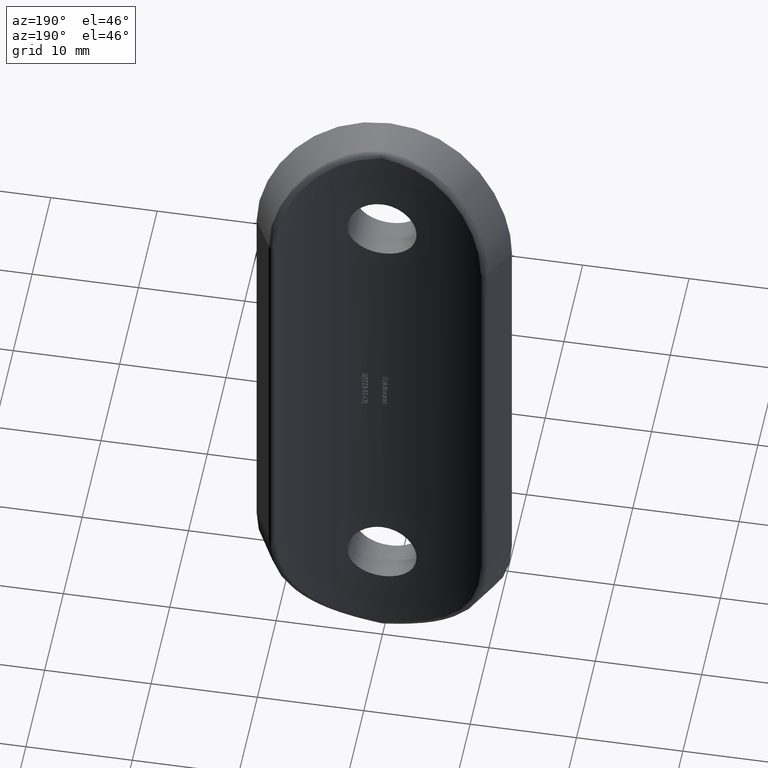
[diagram: clean part render]
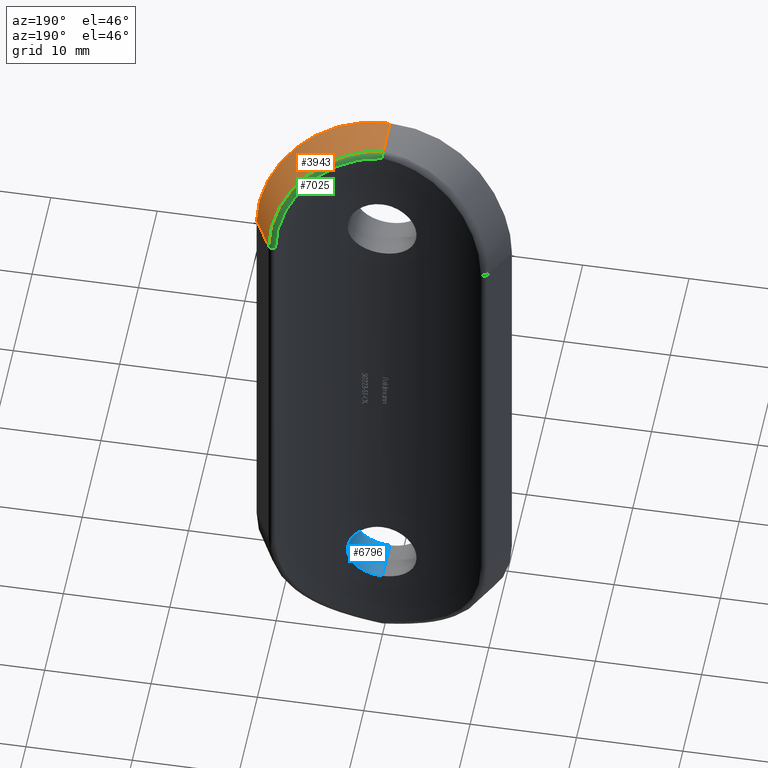
[diagram: same view with three faces highlighted in distinct colors, each labeled with its STEP entity id]
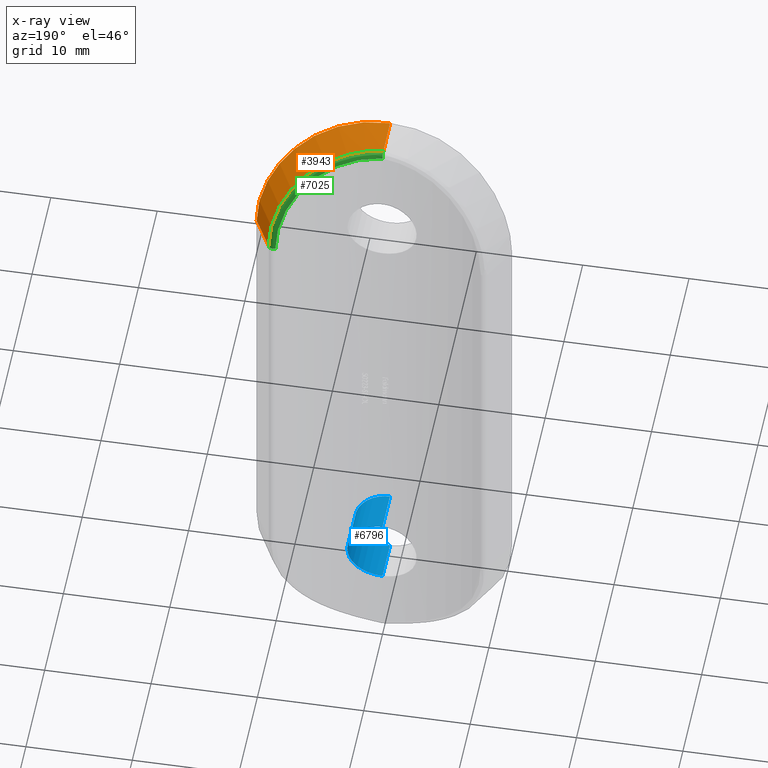
[diagram: x-ray of the same camera — body ghosted, the three highlighted faces saturated]
A machine part, auxiliary view with three faces highlighted in distinct colors.
The next image is the same camera in x-ray (body ghosted, the three faces saturated) — at least one of them is partly hidden behind the body in this view.
Their STEP definitions:

[orange] entity #3943 — the highlighted cylindrical surface (partial cylindrical patch) has radius 12 mm, axis along (0.4762, -0.8793, 0).
#316 = CARTESIAN_POINT ( 'NONE',  ( 9.380846267159300900, 1.660741133774004300, 24.47549258454393200 ) ) ;
#471 = CARTESIAN_POINT ( 'NONE',  ( -10.55210589292537900, 15.48571428571426800, 19.50000000000000000 ) ) ;
#633 = CARTESIAN_POINT ( 'NONE',  ( 11.71599125575619200, -1.111027788990791800, 22.28988272980836200 ) ) ;
#841 = CARTESIAN_POINT ( 'NONE',  ( 6.160525285184449200, -3.245138553629468300, 30.04837552026781500 ) ) ;
#896 = CARTESIAN_POINT ( 'NONE',  ( 8.909917177937140700, -2.374086248459208000, 27.86910506856552800 ) ) ;
#1056 = ORIENTED_EDGE ( 'NONE', *, *, #10342, .F. ) ;
#1113 = CARTESIAN_POINT ( 'NONE',  ( 11.99999999999999800, -0.9594223751432641200, 19.50000000000000000 ) ) ;
#1163 = ORIENTED_EDGE ( 'NONE', *, *, #6722, .F. ) ;
#1421 = CARTESIAN_POINT ( 'NONE',  ( 5.421014655413943100, 0.2527736371594110900, 29.41883732215443100 ) ) ;
#1489 = FACE_OUTER_BOUND ( 'NONE', #5179, .T. ) ;
#1938 = CARTESIAN_POINT ( 'NONE',  ( -1.430077016675846200E-015, -4.000000000000000000, 31.50000000000000000 ) ) ;
#1992 = CARTESIAN_POINT ( 'NONE',  ( -1.430077016675846200E-015, -4.000000000000000000, 31.50000000000000000 ) ) ;
#2035 = CARTESIAN_POINT ( 'NONE',  ( 10.86334236761369500, -1.540439642348692800, 24.94502513748647500 ) ) ;
#2382 = CARTESIAN_POINT ( 'NONE',  ( 0.7290367407144238100, -0.4469597635590890100, 31.27580663925250100 ) ) ;
#2423 = CARTESIAN_POINT ( 'NONE',  ( 7.742899393933323700, 0.9839081457971524700, 27.23461134556579200 ) ) ;
#2721 = VERTEX_POINT ( 'NONE', #14032 ) ;
#3093 = CARTESIAN_POINT ( 'NONE',  ( -6.648073126043469100E-016, -2.817306215491953900, 31.50000000000000000 ) ) ;
#3136 = CARTESIAN_POINT ( 'NONE',  ( 11.41391696054181700, -1.267241225314089400, 23.45119720436173300 ) ) ;
#3245 = CARTESIAN_POINT ( 'NONE',  ( 7.490020082081473500, -2.871071223889372100, 29.18960834183335600 ) ) ;
#3384 = CARTESIAN_POINT ( 'NONE',  ( -1.555207741306705000E-015, -0.4665273873807559400, 31.38144928148674100 ) ) ;
#3452 = CARTESIAN_POINT ( 'NONE',  ( 2.855490079396823900, -0.2571016089213960500, 30.72652424236561000 ) ) ;
#3536 = CARTESIAN_POINT ( 'NONE',  ( 10.01987600549707100, 1.966499582659341400, 22.39180398878291100 ) ) ;
#3580 = CARTESIAN_POINT ( 'NONE',  ( 7.963226863790067600, 1.066953135367978600, 26.94898104757637100 ) ) ;
#3628 = B_SPLINE_CURVE_WITH_KNOTS ( 'NONE', 3,
 ( #6203, #10588, #11541, #633, #9395, #3136, #4327, #2035, #8551, #7459, #11978, #14029, #896, #13931, #3245, #841, #10879, #4289, #9696, #12900, #12949, #8646, #12850, #1938 ),
 .UNSPECIFIED., .F., .F.,
 ( 4, 2, 2, 2, 2, 2, 2, 2, 2, 2, 2, 4 ),
 ( 0.0000000000000000000, 0.002403755772613356100, 0.003605633658920034400, 0.004807511545226713200, 0.007211267317840058500, 0.008413145204146725900, 0.009615023090453391600, 0.01201877886306673300, 0.01442253463568007400, 0.01562441252198674400, 0.01682629040829341700, 0.01923004618090676200 ),
 .UNSPECIFIED. ) ;
#3928 = DIRECTION ( 'NONE',  ( 0.8793421577437800000, 0.4761904761904768900, 0.0000000000000000000 ) ) ;
#3943 = ADVANCED_FACE ( 'NONE', ( #1489 ), #13139, .T. ) ;
#4289 = CARTESIAN_POINT ( 'NONE',  ( 4.349982336097550500, -3.624564216562080600, 30.81886323569778700 ) ) ;
#4327 = CARTESIAN_POINT ( 'NONE',  ( 11.28833695153357500, -1.330832197223991600, 23.83377837251705600 ) ) ;
#4471 = EDGE_CURVE ( 'NONE', #9728, #12522, #3628, .T. ) ;
#5179 = EDGE_LOOP ( 'NONE', ( #1056, #9434, #1163, #12131 ) ) ;
#5701 = CARTESIAN_POINT ( 'NONE',  ( 9.842163442257751500, 1.879487073314584100, 23.09594054719442700 ) ) ;
#5789 = CARTESIAN_POINT ( 'NONE',  ( 10.09358122146651100, 2.003259200978651000, 22.03692327181782700 ) ) ;
#6104 = LINE ( 'NONE', #11737, #11046 ) ;
#6203 = CARTESIAN_POINT ( 'NONE',  ( 11.99999999999999800, -0.9594223751432641200, 19.50000000000000000 ) ) ;
#6402 = CARTESIAN_POINT ( 'NONE',  ( -1.430077016675846200E-015, -4.000000000000000000, 31.50000000000000000 ) ) ;
#6440 = EDGE_CURVE ( 'NONE', #2721, #11138, #7939, .T. ) ;
#6722 = EDGE_CURVE ( 'NONE', #12522, #11138, #8121, .T. ) ;
#6907 = CARTESIAN_POINT ( 'NONE',  ( 0.3660390188082711700, -0.4610958318816593100, 31.33550048143713000 ) ) ;
#7459 = CARTESIAN_POINT ( 'NONE',  ( 9.884724229222927100, -1.981558221754679200, 26.63982154834023300 ) ) ;
#7861 = CARTESIAN_POINT ( 'NONE',  ( -1.555207741306705000E-015, -0.4665273873807559400, 31.38144928148674100 ) ) ;
#7939 = B_SPLINE_CURVE_WITH_KNOTS ( 'NONE', 3,
 ( #10713, #11822, #8936, #5789, #3536, #5701, #10000, #316, #12238, #8001, #13369, #3580, #2423, #12188, #13326, #1421, #13420, #10042, #3452, #10083, #9074, #2382, #6907, #7861 ),
 .UNSPECIFIED., .F., .F.,
 ( 4, 2, 2, 2, 2, 2, 2, 2, 2, 2, 2, 4 ),
 ( 0.0000000000000000000, 0.002181953622633462900, 0.003272930433950189400, 0.004363907245266916400, 0.006545860867900367600, 0.007636837679217090200, 0.008727814490533813600, 0.01090976811316725200, 0.01309172173580069200, 0.01527367535843413200, 0.01636465216975085300, 0.01745562898106757200 ),
 .UNSPECIFIED. ) ;
#8001 = CARTESIAN_POINT ( 'NONE',  ( 8.562218673332061800, 1.305111158414555200, 26.05909755608868700 ) ) ;
#8121 =( BOUNDED_CURVE ( )  B_SPLINE_CURVE ( 3, ( #1992, #3093, #8597, #12851 ),
 .UNSPECIFIED., .F., .T. ) 
 B_SPLINE_CURVE_WITH_KNOTS ( ( 4, 4 ),
 ( 4.712388980384689700, 4.853069725707897000 ),
 .UNSPECIFIED. ) 
 CURVE ( )  GEOMETRIC_REPRESENTATION_ITEM ( )  RATIONAL_B_SPLINE_CURVE ( ( 1.000000000000000000, 0.9983514238904798200, 0.9983514238904798200, 1.000000000000000000 ) ) 
 REPRESENTATION_ITEM ( '' )  );
#8551 = CARTESIAN_POINT ( 'NONE',  ( 10.51403950076352900, -1.706432111569439900, 25.64657530919565100 ) ) ;
#8597 = CARTESIAN_POINT ( 'NONE',  ( -1.111666429471938900E-015, -1.637537072060924800, 31.46041783962495600 ) ) ;
#8646 = CARTESIAN_POINT ( 'NONE',  ( 1.614628932622133000, -3.960784208731628700, 31.43669996251907900 ) ) ;
#8936 = CARTESIAN_POINT ( 'NONE',  ( 10.27070178187117300, 2.092293134099666200, 20.96398982182408900 ) ) ;
#9074 = CARTESIAN_POINT ( 'NONE',  ( 1.448652029141991800, -0.4021667335320285900, 31.12710802299232100 ) ) ;
#9395 = CARTESIAN_POINT ( 'NONE',  ( 11.62757998105686100, -1.157410682874770100, 22.67928499084951000 ) ) ;
#9434 = ORIENTED_EDGE ( 'NONE', *, *, #6440, .T. ) ;
#9696 = CARTESIAN_POINT ( 'NONE',  ( 3.971604063489190500, -3.688143116275659500, 30.94069939061651900 ) ) ;
#9728 = VERTEX_POINT ( 'NONE', #1113 ) ;
#10000 = CARTESIAN_POINT ( 'NONE',  ( 9.737482093167640700, 1.828916653511875500, 23.44699526699284000 ) ) ;
#10042 = CARTESIAN_POINT ( 'NONE',  ( 3.525587456594099200, -0.1519860559817202700, 30.46195507858156400 ) ) ;
#10083 = CARTESIAN_POINT ( 'NONE',  ( 1.806454664494644000, -0.3713428404764554900, 31.03768261639540400 ) ) ;
#10342 = EDGE_CURVE ( 'NONE', #2721, #9728, #6104, .T. ) ;
#10588 = CARTESIAN_POINT ( 'NONE',  ( 12.00000000000000000, -0.9594223751432642300, 20.31274261880712100 ) ) ;
#10713 = CARTESIAN_POINT ( 'NONE',  ( 10.33058993646413600, 2.123341184457221900, 19.50000000000000000 ) ) ;
#10818 = DIRECTION ( 'NONE',  ( 0.4761904761904769400, -0.8793421577437800000, -0.0000000000000000000 ) ) ;
#10879 = CARTESIAN_POINT ( 'NONE',  ( 5.457864477615489200, -3.413351149534354300, 30.39947326146851800 ) ) ;
#11046 = VECTOR ( 'NONE', #10818, 1000.000000000000000 ) ;
#11138 = VERTEX_POINT ( 'NONE', #3384 ) ;
#11541 = CARTESIAN_POINT ( 'NONE',  ( 11.92832106730126400, -0.9986667378848971300, 21.11159825841765400 ) ) ;
#11737 = CARTESIAN_POINT ( 'NONE',  ( 11.99999999999999800, -0.9594223751432642300, 19.50000000000000000 ) ) ;
#11822 = CARTESIAN_POINT ( 'NONE',  ( 10.33058993646413800, 2.123341184457222300, 20.23771835066772300 ) ) ;
#11978 = CARTESIAN_POINT ( 'NONE',  ( 9.655711293404406700, -2.078237200720399500, 26.96281491189224500 ) ) ;
#12119 = AXIS2_PLACEMENT_3D ( 'NONE', #471, #12589, #3928 ) ;
#12131 = ORIENTED_EDGE ( 'NONE', *, *, #4471, .F. ) ;
#12188 = CARTESIAN_POINT ( 'NONE',  ( 7.049342267791700100, 0.7354834295311231100, 28.04769904794205000 ) ) ;
#12238 = CARTESIAN_POINT ( 'NONE',  ( 9.087674179100082100, 1.527117681080104400, 25.12826339384416100 ) ) ;
#12522 = VERTEX_POINT ( 'NONE', #6402 ) ;
#12589 = DIRECTION ( 'NONE',  ( 0.4761904761904769400, -0.8793421577437800000, 0.0000000000000000000 ) ) ;
#12850 = CARTESIAN_POINT ( 'NONE',  ( 0.8123569663187905100, -3.999999999999999100, 31.50000000000000700 ) ) ;
#12851 = CARTESIAN_POINT ( 'NONE',  ( -1.555207741306705000E-015, -0.4665273873807559400, 31.38144928148674100 ) ) ;
#12900 = CARTESIAN_POINT ( 'NONE',  ( 3.196476755381116000, -3.799516854644442900, 31.14900833836188800 ) ) ;
#12949 = CARTESIAN_POINT ( 'NONE',  ( 2.801740797750721200, -3.846921380667204000, 31.23474568857012200 ) ) ;
#13139 = CYLINDRICAL_SURFACE ( 'NONE', #12119, 12.00000000000000000 ) ;
#13326 = CARTESIAN_POINT ( 'NONE',  ( 6.539470599577557100, 0.5690297762735070400, 28.53832671473507800 ) ) ;
#13369 = CARTESIAN_POINT ( 'NONE',  ( 8.372688073278615300, 1.227509043111306900, 26.36127210913013700 ) ) ;
#13420 = CARTESIAN_POINT ( 'NONE',  ( 4.806137074679146100, 0.1020900379496531700, 29.81053893712089600 ) ) ;
#13931 = CARTESIAN_POINT ( 'NONE',  ( 8.092293552249048000, -2.672399362741065600, 28.69793333266338900 ) ) ;
#14029 = CARTESIAN_POINT ( 'NONE',  ( 9.168061832152750100, -2.274576247429995300, 27.57751229447802600 ) ) ;
#14032 = CARTESIAN_POINT ( 'NONE',  ( 10.33058993646413600, 2.123341184457221900, 19.50000000000000000 ) ) ;

[blue] entity #6796 — the highlighted cylindrical surface (edge-blend (fillet) strip) has radius 3.25 mm, axis along (-0, -1, -0).
#432 = CARTESIAN_POINT ( 'NONE',  ( 3.228884920486573100, -3.792319949075413800, -21.07338228239292700 ) ) ;
#474 = CARTESIAN_POINT ( 'NONE',  ( 1.047374103152517900, -3.978995375030609100, -18.41603188571118800 ) ) ;
#497 = VERTEX_POINT ( 'NONE', #9025 ) ;
#743 = EDGE_LOOP ( 'NONE', ( #8172, #14149, #11293, #12882 ) ) ;
#948 = CARTESIAN_POINT ( 'NONE',  ( 0.4264954454845099600, 0.003269792457306753300, -24.72886130417463900 ) ) ;
#1080 = CARTESIAN_POINT ( 'NONE',  ( 1.982036205794351000, 0.09211226320555675200, -24.08439713500633100 ) ) ;
#1168 = CARTESIAN_POINT ( 'NONE',  ( 0.2122731573180394200, -3.192043661727830800E-015, -18.25000000000000000 ) ) ;
#1171 = B_SPLINE_CURVE_WITH_KNOTS ( 'NONE', 3,
 ( #9701, #8777, #948, #2089, #6553, #3293, #14084, #1080, #9797, #8650, #5319, #10932, #7560, #14036, #3252, #14181, #4333, #3144, #9749, #5469, #4296, #7653, #6732, #12075, #5717, #4464, #1296, #9927, #7746, #13261, #10099, #10013, #1168, #4509 ),
 .UNSPECIFIED., .F., .F.,
 ( 4, 2, 2, 2, 2, 2, 2, 2, 2, 2, 2, 2, 2, 2, 2, 2, 4 ),
 ( 1.784740012838086800E-019, 0.0006359992705123447800, 0.001271998541024689100, 0.001907997811537033400, 0.002543997082049377800, 0.003179996352561722900, 0.003815995623074067100, 0.004451994893586412200, 0.005087994164098756500, 0.005723993434611100700, 0.006359992705123445800, 0.006995991975635790100, 0.007631991246148134300, 0.008267990516660479400, 0.008903989787172824500, 0.009539989057685167900, 0.01017598832819751300 ),
 .UNSPECIFIED. ) ;
#1296 = CARTESIAN_POINT ( 'NONE',  ( 1.982938509338523700, 0.09220263752442738000, -18.91635450782076000 ) ) ;
#1696 = CARTESIAN_POINT ( 'NONE',  ( 3.980102097228897200E-016, -6.249999999999974200, -18.25000000000000000 ) ) ;
#1727 = CARTESIAN_POINT ( 'NONE',  ( 3.145789730916917400, -3.802915054760238600, -20.65637243076135100 ) ) ;
#1802 = CYLINDRICAL_SURFACE ( 'NONE', #10283, 3.249999999999999600 ) ;
#2089 = CARTESIAN_POINT ( 'NONE',  ( 0.8423372769297834400, 0.01571955981826477600, -24.64609465822467600 ) ) ;
#2447 = CARTESIAN_POINT ( 'NONE',  ( -3.237414360353812700E-016, -3.999999999999998200, -24.74999999999999600 ) ) ;
#2674 = CARTESIAN_POINT ( 'NONE',  ( 0.4278075634889013100, -3.997231405282156500, -18.27127346366641800 ) ) ;
#2724 = CARTESIAN_POINT ( 'NONE',  ( 2.448293202745678100, -3.881237321424443100, -23.64783916201492900 ) ) ;
#2775 = CARTESIAN_POINT ( 'NONE',  ( 2.148846319067987800, -3.908665131329721800, -23.94740927707720600 ) ) ;
#2820 = CARTESIAN_POINT ( 'NONE',  ( 1.630984209508580700, -3.947783067614378400, -18.68092628248565700 ) ) ;
#3144 = CARTESIAN_POINT ( 'NONE',  ( 3.250079504832142300, 0.2506090012434782900, -21.28889479561993900 ) ) ;
#3252 = CARTESIAN_POINT ( 'NONE',  ( 3.145685426611446000, 0.2346369294840653900, -22.34436239147623800 ) ) ;
#3293 = CARTESIAN_POINT ( 'NONE',  ( 1.442403631853392800, 0.04820789140670848200, -24.42016099372725400 ) ) ;
#3392 = VECTOR ( 'NONE', #5958, 1000.000000000000000 ) ;
#3745 = CARTESIAN_POINT ( 'NONE',  ( 0.8420286645357342200, -3.986786607900433000, -24.64617266009791800 ) ) ;
#3791 = CARTESIAN_POINT ( 'NONE',  ( 1.048575703819336000, -3.978945489830352700, -24.58356341383954200 ) ) ;
#3840 = CARTESIAN_POINT ( 'NONE',  ( 3.980101605057122000E-016, -4.000000000000001800, -18.25000000000000000 ) ) ;
#4296 = CARTESIAN_POINT ( 'NONE',  ( 3.084227820100316400, 0.2253884919581221100, -20.45334938705387300 ) ) ;
#4333 = CARTESIAN_POINT ( 'NONE',  ( 3.249920036851538600, 0.2505842620711348200, -21.71354612878063500 ) ) ;
#4443 = VERTEX_POINT ( 'NONE', #5335 ) ;
#4464 = CARTESIAN_POINT ( 'NONE',  ( 2.146772466492739900, 0.1084242658261596200, -19.05056654316342700 ) ) ;
#4509 = CARTESIAN_POINT ( 'NONE',  ( 3.980101132474219600E-016, -3.578424432187622000E-015, -18.25000000000000000 ) ) ;
#4881 = CARTESIAN_POINT ( 'NONE',  ( 0.2122230471317226300, -4.000000000000000900, -18.25000000000000400 ) ) ;
#5038 = CARTESIAN_POINT ( 'NONE',  ( 3.084330026343578400, -3.810670690545057100, -20.45366553155928100 ) ) ;
#5319 = CARTESIAN_POINT ( 'NONE',  ( 2.582659189079638700, 0.1575615568940026700, -23.48444623506342000 ) ) ;
#5335 = CARTESIAN_POINT ( 'NONE',  ( 3.980101132474219600E-016, -3.578424432187622000E-015, -18.25000000000000000 ) ) ;
#5437 = LINE ( 'NONE', #13505, #9857 ) ;
#5469 = CARTESIAN_POINT ( 'NONE',  ( 3.145719621873083800, 0.2346424750288583800, -20.65610111859616500 ) ) ;
#5526 = VERTEX_POINT ( 'NONE', #11928 ) ;
#5717 = CARTESIAN_POINT ( 'NONE',  ( 2.449601441195985400, 0.1414470641363241300, -19.35341921613645200 ) ) ;
#5923 = CARTESIAN_POINT ( 'NONE',  ( -1.546228035191325800E-016, -4.619721007958063400E-015, -24.74999999999999600 ) ) ;
#5947 = CARTESIAN_POINT ( 'NONE',  ( 2.146749842079460600, -3.908855626522028900, -19.05052656596651100 ) ) ;
#5958 = DIRECTION ( 'NONE',  ( -0.0000000000000000000, -1.000000000000000000, -0.0000000000000000000 ) ) ;
#5999 = CARTESIAN_POINT ( 'NONE',  ( 3.229257522345796400, -3.792272161209743000, -21.92446431460341200 ) ) ;
#6093 = CARTESIAN_POINT ( 'NONE',  ( 3.249921466792945200, -3.789558028622972000, -21.71342183589956300 ) ) ;
#6143 = CARTESIAN_POINT ( 'NONE',  ( 2.449887203856966300, -3.881092847927759800, -19.35372236724093800 ) ) ;
#6485 = LINE ( 'NONE', #1696, #3392 ) ;
#6510 = VERTEX_POINT ( 'NONE', #5923 ) ;
#6553 = CARTESIAN_POINT ( 'NONE',  ( 1.048939250356790000, 0.02504866377742445700, -24.58343881332692900 ) ) ;
#6640 = DIRECTION ( 'NONE',  ( -0.0000000000000000000, -1.000000000000000000, -0.0000000000000000000 ) ) ;
#6732 = CARTESIAN_POINT ( 'NONE',  ( 2.819422580313719600, 0.1879817580463362100, -19.86962649965411400 ) ) ;
#6796 = ADVANCED_FACE ( 'NONE', ( #8136 ), #1802, .F. ) ;
#7018 = CARTESIAN_POINT ( 'NONE',  ( 2.921303650117720100, -3.830236217145515500, -20.05989843585232200 ) ) ;
#7065 = CARTESIAN_POINT ( 'NONE',  ( 1.982795539817884300, -3.922492403317331600, -18.91624150437298700 ) ) ;
#7157 = CARTESIAN_POINT ( 'NONE',  ( 1.442084102744212800, -3.959475360728428300, -24.42031980687431100 ) ) ;
#7560 = CARTESIAN_POINT ( 'NONE',  ( 2.920988639077606300, 0.2020350234704950100, -22.94052626282839600 ) ) ;
#7653 = CARTESIAN_POINT ( 'NONE',  ( 2.921096390877595500, 0.2020480752344466200, -20.05946724193334100 ) ) ;
#7746 = CARTESIAN_POINT ( 'NONE',  ( 1.441005896736211600, 0.04811340504722574200, -18.57915840024821500 ) ) ;
#7757 = B_SPLINE_CURVE_WITH_KNOTS ( 'NONE', 3,
 ( #2447, #9334, #9289, #3745, #3791, #7157, #9196, #11432, #2775, #2724, #8302, #11585, #11386, #8249, #10376, #5999, #6093, #12494, #432, #1727, #5038, #7018, #9383, #12688, #6143, #5947, #7065, #2820, #10423, #474, #8158, #2674, #4881, #3840 ),
 .UNSPECIFIED., .F., .F.,
 ( 4, 2, 2, 2, 2, 2, 2, 2, 2, 2, 2, 2, 2, 2, 2, 2, 4 ),
 ( 2.787408239283590600E-019, 0.0006357232227818316500, 0.001271446445563662600, 0.001907169668345494000, 0.002542892891127325300, 0.003178616113909156400, 0.003814339336690987900, 0.004450062559472819100, 0.005085785782254649700, 0.005721509005036482100, 0.006357232227818313700, 0.006992955450600144400, 0.007628678673381975900, 0.008264401896163807400, 0.008900125118945638100, 0.009535848341727470500, 0.01017157156450930100 ),
 .UNSPECIFIED. ) ;
#7994 = EDGE_CURVE ( 'NONE', #6510, #4443, #1171, .T. ) ;
#8136 = FACE_OUTER_BOUND ( 'NONE', #743, .T. ) ;
#8158 = CARTESIAN_POINT ( 'NONE',  ( 0.8447587679019649100, -3.986700308431997200, -18.35451482568178200 ) ) ;
#8172 = ORIENTED_EDGE ( 'NONE', *, *, #9101, .F. ) ;
#8249 = CARTESIAN_POINT ( 'NONE',  ( 3.083254818959087400, -3.810801770974805900, -22.54920756651177900 ) ) ;
#8302 = CARTESIAN_POINT ( 'NONE',  ( 2.582741924261363000, -3.867583038801238900, -23.48434012082718800 ) ) ;
#8650 = CARTESIAN_POINT ( 'NONE',  ( 2.448245710141897700, 0.1413021867625217600, -23.64788291266884800 ) ) ;
#8694 = CARTESIAN_POINT ( 'NONE',  ( 0.0000000000000000000, -6.249999999999974200, -21.50000000000000000 ) ) ;
#8777 = CARTESIAN_POINT ( 'NONE',  ( 0.2150763702856124400, -3.442871293233509300E-015, -24.74999999999999600 ) ) ;
#9025 = CARTESIAN_POINT ( 'NONE',  ( -3.237414360353812700E-016, -3.999999999999998200, -24.74999999999999600 ) ) ;
#9101 = EDGE_CURVE ( 'NONE', #4443, #5526, #6485, .T. ) ;
#9166 = DIRECTION ( 'NONE',  ( -0.0000000000000000000, -1.000000000000000000, -0.0000000000000000000 ) ) ;
#9196 = CARTESIAN_POINT ( 'NONE',  ( 1.628683084157501300, -3.947936878248986800, -24.32045740492953100 ) ) ;
#9289 = CARTESIAN_POINT ( 'NONE',  ( 0.4263147010909994500, -3.997251589795385800, -24.72888068139426600 ) ) ;
#9334 = CARTESIAN_POINT ( 'NONE',  ( 0.2149759820200501900, -4.000000000000000000, -24.74999999999999600 ) ) ;
#9383 = CARTESIAN_POINT ( 'NONE',  ( 2.819586614385453300, -3.842043119532631200, -19.86990162381511700 ) ) ;
#9701 = CARTESIAN_POINT ( 'NONE',  ( -1.546228035191325800E-016, -4.619721007958063400E-015, -24.74999999999999600 ) ) ;
#9749 = CARTESIAN_POINT ( 'NONE',  ( 3.228861059861452400, 0.2472859909411308200, -21.07318210255150200 ) ) ;
#9797 = CARTESIAN_POINT ( 'NONE',  ( 2.148951533804948500, 0.1086589342489055300, -23.94730777981037300 ) ) ;
#9857 = VECTOR ( 'NONE', #9166, 1000.000000000000000 ) ;
#9927 = CARTESIAN_POINT ( 'NONE',  ( 1.631209832495484900, 0.06211199978771579600, -18.68105983684544200 ) ) ;
#10013 = CARTESIAN_POINT ( 'NONE',  ( 0.4279129834556345000, 0.003291781754002020200, -18.27127959555558000 ) ) ;
#10099 = CARTESIAN_POINT ( 'NONE',  ( 0.8450918658946555700, 0.01582268415726228300, -18.35459625649037800 ) ) ;
#10283 = AXIS2_PLACEMENT_3D ( 'NONE', #8694, #6640, #14132 ) ;
#10376 = CARTESIAN_POINT ( 'NONE',  ( 3.145745220927481400, -3.802921007966614500, -22.34413334551512900 ) ) ;
#10423 = CARTESIAN_POINT ( 'NONE',  ( 1.440851101306092700, -3.959545876498494500, -18.57907549810515500 ) ) ;
#10932 = CARTESIAN_POINT ( 'NONE',  ( 2.820240372269857700, 0.1880846098823771300, -23.12923282234738300 ) ) ;
#10973 = EDGE_CURVE ( 'NONE', #6510, #497, #5437, .T. ) ;
#11293 = ORIENTED_EDGE ( 'NONE', *, *, #10973, .T. ) ;
#11386 = CARTESIAN_POINT ( 'NONE',  ( 2.921132622535348700, -3.830254687221836400, -22.94023643816553800 ) ) ;
#11432 = CARTESIAN_POINT ( 'NONE',  ( 1.981823280531521900, -3.922573799389253800, -24.08456283467550600 ) ) ;
#11585 = CARTESIAN_POINT ( 'NONE',  ( 2.820323020819258900, -3.841965843614787900, -23.12909165509454800 ) ) ;
#11928 = CARTESIAN_POINT ( 'NONE',  ( 3.980101605057122000E-016, -4.000000000000001800, -18.25000000000000000 ) ) ;
#12075 = CARTESIAN_POINT ( 'NONE',  ( 2.584254445682808900, 0.1577643001855658900, -19.51785711993771600 ) ) ;
#12494 = CARTESIAN_POINT ( 'NONE',  ( 3.250078090663377900, -3.789537659004944100, -21.28897671941173200 ) ) ;
#12688 = CARTESIAN_POINT ( 'NONE',  ( 2.584372539048636500, -3.867409336745681000, -19.51800404352745500 ) ) ;
#12882 = ORIENTED_EDGE ( 'NONE', *, *, #13598, .T. ) ;
#13261 = CARTESIAN_POINT ( 'NONE',  ( 1.047707894291750600, 0.02498848433819274600, -18.41615146067322700 ) ) ;
#13505 = CARTESIAN_POINT ( 'NONE',  ( 0.0000000000000000000, -6.249999999999974200, -24.74999999999999600 ) ) ;
#13598 = EDGE_CURVE ( 'NONE', #497, #5526, #7757, .T. ) ;
#14036 = CARTESIAN_POINT ( 'NONE',  ( 3.083140140979245800, 0.2252305219756310100, -22.54954152590607600 ) ) ;
#14084 = CARTESIAN_POINT ( 'NONE',  ( 1.628966586198433000, 0.06193338804974971700, -24.32029146251899500 ) ) ;
#14132 = DIRECTION ( 'NONE',  ( 0.0000000000000000000, 0.0000000000000000000, -1.000000000000000000 ) ) ;
#14149 = ORIENTED_EDGE ( 'NONE', *, *, #7994, .F. ) ;
#14181 = CARTESIAN_POINT ( 'NONE',  ( 3.229234686348998900, 0.2473431560045480600, -21.92465043484681800 ) ) ;

[green] entity #7025 — the highlighted face is a freeform B-spline surface patch.
#316 = CARTESIAN_POINT ( 'NONE',  ( 9.380846267159300900, 1.660741133774004300, 24.47549258454393200 ) ) ;
#454 = EDGE_CURVE ( 'NONE', #11138, #10729, #4853, .T. ) ;
#487 = CARTESIAN_POINT ( 'NONE',  ( 6.533477080495391200, 1.026461153271245500, 27.74491136130227500 ) ) ;
#535 = CARTESIAN_POINT ( 'NONE',  ( 6.995248304402477600, 0.7172880876236088500, 28.10338576803350800 ) ) ;
#586 = CARTESIAN_POINT ( 'NONE',  ( 8.757743212834732600, 1.891853518453189900, 24.30637283226694500 ) ) ;
#637 = CARTESIAN_POINT ( 'NONE',  ( 9.605969955432190200, 2.300762448865997900, 20.91489877139577700 ) ) ;
#688 = CARTESIAN_POINT ( 'NONE',  ( 6.477832343604291100, 0.5498281777571896200, 28.59389063956088600 ) ) ;
#695 = CARTESIAN_POINT ( 'NONE',  ( 8.258174201492155500E-015, -0.2194944559927970700, 31.31449719995204400 ) ) ;
#774 = CARTESIAN_POINT ( 'NONE',  ( 5.113609657060173700, 0.6188133145618903700, 28.96289865701957200 ) ) ;
#879 = CARTESIAN_POINT ( 'NONE',  ( 0.6896497510945458500, 0.008480767863660776700, 30.77399828199671500 ) ) ;
#898 = CARTESIAN_POINT ( 'NONE',  ( 1.202358941728816300, 0.03140433067582475800, 30.66741318706098000 ) ) ;
#1233 = ORIENTED_EDGE ( 'NONE', *, *, #454, .F. ) ;
#1308 = CIRCLE ( 'NONE', #6248, 0.5000000000000004400 ) ;
#1421 = CARTESIAN_POINT ( 'NONE',  ( 5.421014655413943100, 0.2527736371594110900, 29.41883732215443100 ) ) ;
#1594 = CARTESIAN_POINT ( 'NONE',  ( 5.196446019220325700, 0.6430515654991423300, 29.40758670405110200 ) ) ;
#1642 = CARTESIAN_POINT ( 'NONE',  ( 10.26968361599156200, 2.091759916416298500, 20.97641610927502500 ) ) ;
#1740 = CARTESIAN_POINT ( 'NONE',  ( 9.437177149033294300, 2.216226740779936300, 21.95164495668590700 ) ) ;
#1797 = CARTESIAN_POINT ( 'NONE',  ( 9.197488118853034000, 2.098819615003829400, 22.97481880383837800 ) ) ;
#1921 = CARTESIAN_POINT ( 'NONE',  ( 9.378791250828021100, 2.187202348987393700, 22.23901331811555300 ) ) ;
#1977 = CARTESIAN_POINT ( 'NONE',  ( 6.159456498197347900, 0.9072588162060164500, 28.11145014195096100 ) ) ;
#2288 = CARTESIAN_POINT ( 'NONE',  ( 9.890918857592245300, 1.885245946361983500, 19.50000000000000000 ) ) ;
#2382 = CARTESIAN_POINT ( 'NONE',  ( 0.7290367407144238100, -0.4469597635590890100, 31.27580663925250100 ) ) ;
#2423 = CARTESIAN_POINT ( 'NONE',  ( 7.742899393933323700, 0.9839081457971524700, 27.23461134556579200 ) ) ;
#2635 = CARTESIAN_POINT ( 'NONE',  ( 9.364642108057932300, 1.653273491039128200, 24.51534556396173100 ) ) ;
#2685 = CARTESIAN_POINT ( 'NONE',  ( 9.786342818186245300, 2.387878524322688100, 22.41102076221211400 ) ) ;
#2721 = VERTEX_POINT ( 'NONE', #14032 ) ;
#2735 = CARTESIAN_POINT ( 'NONE',  ( 4.386553868771559700, 0.4566475144797662600, 29.41431650444744900 ) ) ;
#2747 = CARTESIAN_POINT ( 'NONE',  ( -4.618694692894546100E-015, -5.064187066458384200E-015, 30.87858612579885800 ) ) ;
#2951 = EDGE_CURVE ( 'NONE', #10729, #3052, #5915, .T. ) ;
#2975 = CARTESIAN_POINT ( 'NONE',  ( 8.037999328782264600, 1.582118121373202100, 25.72968974590904200 ) ) ;
#2995 = CARTESIAN_POINT ( 'NONE',  ( 0.5993615212584417800, 0.005419335145114260000, 31.25677621415526600 ) ) ;
#3027 = CARTESIAN_POINT ( 'NONE',  ( 9.608332408218966900, 2.301995974115456100, 20.88568067004391400 ) ) ;
#3052 = VERTEX_POINT ( 'NONE', #5010 ) ;
#3179 = CARTESIAN_POINT ( 'NONE',  ( 3.330643053977195000, 0.2542796804946514900, 29.97754406847160900 ) ) ;
#3384 = CARTESIAN_POINT ( 'NONE',  ( -1.555207741306705000E-015, -0.4665273873807559400, 31.38144928148674100 ) ) ;
#3452 = CARTESIAN_POINT ( 'NONE',  ( 2.855490079396823900, -0.2571016089213960500, 30.72652424236561000 ) ) ;
#3457 =( BOUNDED_SURFACE ( )  B_SPLINE_SURFACE ( 3, 2, ( 
 ( #11168, #3898, #4848 ),
 ( #3803, #3753, #3849 ),
 ( #637, #13685, #1642 ),
 ( #1740, #10434, #4947 ),
 ( #13640, #2685, #13596 ),
 ( #1797, #12503, #7170 ),
 ( #10336, #11394, #11546 ),
 ( #586, #10386, #2635 ),
 ( #8262, #7271, #6009 ),
 ( #12550, #11445, #10294 ),
 ( #4894, #5955, #3948 ),
 ( #4997, #7120, #6108 ),
 ( #12702, #12652, #7077 ),
 ( #487, #11490, #535 ),
 ( #11599, #8167, #688 ),
 ( #12603, #8217, #9297 ),
 ( #6058, #1594, #13787 ),
 ( #2735, #13735, #7222 ),
 ( #9251, #9400, #10484 ),
 ( #6155, #5055, #8367 ),
 ( #6267, #9554, #8414 ),
 ( #6366, #4110, #13886 ),
 ( #898, #12804, #8555 ),
 ( #4154, #2995, #12752 ),
 ( #8509, #4001, #7362 ),
 ( #10637, #9647, #14033 ) ),
 .UNSPECIFIED., .F., .F., .F. ) 
 B_SPLINE_SURFACE_WITH_KNOTS ( ( 4, 2, 2, 2, 2, 2, 2, 2, 2, 2, 2, 2, 4 ),
 ( 3, 3 ),
 ( 0.0000000000000000000, 0.002108923726170382000, 0.003163385589255573100, 0.004217847452340764100, 0.006326771178511146100, 0.007381233041596336700, 0.008435694904681528100, 0.01054461863085191100, 0.01159908049393710100, 0.01265354235702229200, 0.01476246608319267300, 0.01581692794627786300, 0.01687138980936305600 ),
 ( 0.0000000000000000000, 1.000000000000000000 ),
 .UNSPECIFIED. ) 
 GEOMETRIC_REPRESENTATION_ITEM ( )  RATIONAL_B_SPLINE_SURFACE ( (
 ( 1.000000000000000000, 0.7152067794192037400, 1.000000000000000000),
 ( 1.000000000000000000, 0.7152030138075474700, 1.000000000000000000),
 ( 1.000000000000000000, 0.7162386269001991300, 1.000000000000000000),
 ( 1.000000000000000000, 0.7190974102889098300, 1.000000000000000000),
 ( 1.000000000000000000, 0.7202669975625837200, 1.000000000000000000),
 ( 1.000000000000000000, 0.7229771465164223100, 1.000000000000000000),
 ( 1.000000000000000000, 0.7245272282875912000, 1.000000000000000000),
 ( 1.000000000000000000, 0.7295283016102588300, 1.000000000000000000),
 ( 1.000000000000000000, 0.7333270819599722000, 1.000000000000000000),
 ( 1.000000000000000000, 0.7390232495485793400, 1.000000000000000000),
 ( 1.000000000000000000, 0.7409210345986859700, 1.000000000000000000),
 ( 1.000000000000000000, 0.7445850415033826700, 1.000000000000000000),
 ( 1.000000000000000000, 0.7463470331104891100, 1.000000000000000000),
 ( 1.000000000000000000, 0.7511224776702678500, 1.000000000000000000),
 ( 1.000000000000000000, 0.7536688717658081000, 1.000000000000000000),
 ( 1.000000000000000000, 0.7558262722949770100, 1.000000000000000000),
 ( 1.000000000000000000, 0.7562685044639152500, 1.000000000000000000),
 ( 1.000000000000000000, 0.7564715335614993200, 1.000000000000000000),
 ( 1.000000000000000000, 0.7562327208749114500, 1.000000000000000000),
 ( 1.000000000000000000, 0.7544103873443004400, 1.000000000000000000),
 ( 1.000000000000000000, 0.7517216988928300300, 1.000000000000000000),
 ( 1.000000000000000000, 0.7451516596828003900, 1.000000000000000000),
 ( 1.000000000000000000, 0.7425328598652234400, 1.000000000000000000),
 ( 1.000000000000000000, 0.7365379224981940500, 1.000000000000000000),
 ( 1.000000000000000000, 0.7331517136095948600, 1.000000000000000000),
 ( 1.000000000000000000, 0.7293836484547999700, 1.000000000000000000) ) ) 
 REPRESENTATION_ITEM ( '' )  SURFACE ( )  );
#3536 = CARTESIAN_POINT ( 'NONE',  ( 10.01987600549707100, 1.966499582659341400, 22.39180398878291100 ) ) ;
#3580 = CARTESIAN_POINT ( 'NONE',  ( 7.963226863790067600, 1.066953135367978600, 26.94898104757637100 ) ) ;
#3753 = CARTESIAN_POINT ( 'NONE',  ( 10.09791899111120400, 2.552995661837016400, 20.24330488264090600 ) ) ;
#3803 = CARTESIAN_POINT ( 'NONE',  ( 9.663017500632980400, 2.330286361938058700, 20.21299152555879900 ) ) ;
#3849 = CARTESIAN_POINT ( 'NONE',  ( 10.33058993645402200, 2.123341184475901600, 20.24399115711022300 ) ) ;
#3857 = CARTESIAN_POINT ( 'NONE',  ( -2.563273398535507500E-015, -0.3398445469029665600, 31.37290625969599800 ) ) ;
#3898 = CARTESIAN_POINT ( 'NONE',  ( 10.09791899194918100, 2.552995662284760500, 19.50000000000000000 ) ) ;
#3948 = CARTESIAN_POINT ( 'NONE',  ( 8.339505727220965200, 1.214131658364097300, 26.41221021444473700 ) ) ;
#4001 = CARTESIAN_POINT ( 'NONE',  ( 0.2474847149378889000, -0.001559229136010627800, 31.31701424292835200 ) ) ;
#4088 = CARTESIAN_POINT ( 'NONE',  ( 8.522911624579375500, 1.785498515474549500, 24.84042727051943800 ) ) ;
#4110 = CARTESIAN_POINT ( 'NONE',  ( 1.650231524935692500, 0.06121280808593716800, 31.01890975334584200 ) ) ;
#4136 = CARTESIAN_POINT ( 'NONE',  ( 9.663017501426530500, 2.330286362344426100, 20.19794404104408500 ) ) ;
#4154 = CARTESIAN_POINT ( 'NONE',  ( 0.5243656461507986100, 0.003770375247810940900, 30.80355038451571300 ) ) ;
#4680 = ORIENTED_EDGE ( 'NONE', *, *, #6440, .F. ) ;
#4848 = CARTESIAN_POINT ( 'NONE',  ( 10.33058993646413600, 2.123341184457221400, 19.50000000000000000 ) ) ;
#4853 = B_SPLINE_CURVE_WITH_KNOTS ( 'NONE', 3,
 ( #8324, #3857, #695, #8177, #13749, #2747 ),
 .UNSPECIFIED., .F., .F.,
 ( 4, 2, 4 ),
 ( 2.927345865710862000E-018, 0.0003754857564058667600, 0.0007509715128117306000 ),
 .UNSPECIFIED. ) ;
#4894 = CARTESIAN_POINT ( 'NONE',  ( 7.795980046934873900, 1.484357380830180900, 26.12420145561111800 ) ) ;
#4947 = CARTESIAN_POINT ( 'NONE',  ( 10.08952598151063600, 2.001231854621101200, 22.05823821567601300 ) ) ;
#4997 = CARTESIAN_POINT ( 'NONE',  ( 7.404928707972119100, 1.334177600489769600, 26.69018392525085300 ) ) ;
#5010 = CARTESIAN_POINT ( 'NONE',  ( 9.663017501426526900, 2.330286362344427000, 19.50000000000000000 ) ) ;
#5055 = CARTESIAN_POINT ( 'NONE',  ( 3.339284962142063100, 0.2541194991178110700, 30.44871669159592300 ) ) ;
#5137 = CARTESIAN_POINT ( 'NONE',  ( 4.536338801400726900, 0.4819399282931899900, 29.34338558514981100 ) ) ;
#5192 = CARTESIAN_POINT ( 'NONE',  ( 9.120173968685220300, 2.061636133241121700, 23.23995891737122600 ) ) ;
#5701 = CARTESIAN_POINT ( 'NONE',  ( 9.842163442257751500, 1.879487073314584100, 23.09594054719442700 ) ) ;
#5789 = CARTESIAN_POINT ( 'NONE',  ( 10.09358122146651100, 2.003259200978651000, 22.03692327181782700 ) ) ;
#5915 = B_SPLINE_CURVE_WITH_KNOTS ( 'NONE', 3,
 ( #6344, #6444, #879, #14065, #9727, #13913, #3179, #5137, #774, #1977, #9533, #10715, #12881, #7392, #2975, #4088, #10670, #5192, #8493, #1921, #9578, #3027, #4136, #7774 ),
 .UNSPECIFIED., .F., .F.,
 ( 4, 2, 2, 2, 2, 2, 2, 2, 2, 2, 2, 4 ),
 ( 0.0000000000000000000, 0.001045220149918886500, 0.002090440299837772900, 0.004180880599675545900, 0.006271320899513320100, 0.008361761199351095200, 0.009406981349269982800, 0.01045220149918887400, 0.01254264179902665100, 0.01358786194894554200, 0.01463308209886443100, 0.01672352239870220100 ),
 .UNSPECIFIED. ) ;
#5955 = CARTESIAN_POINT ( 'NONE',  ( 8.140444897297891600, 1.620457699221818000, 26.38584797785639300 ) ) ;
#6009 = CARTESIAN_POINT ( 'NONE',  ( 9.066604695670520200, 1.517714613435160200, 25.17227394282745200 ) ) ;
#6058 = CARTESIAN_POINT ( 'NONE',  ( 4.966964040085461100, 0.5879211284579276600, 29.04481847412745000 ) ) ;
#6108 = CARTESIAN_POINT ( 'NONE',  ( 7.922975927393941300, 1.051607028042438300, 27.00280061775906000 ) ) ;
#6155 = CARTESIAN_POINT ( 'NONE',  ( 3.175433922492166200, 0.2300260404082689100, 30.04543854843583600 ) ) ;
#6248 = AXIS2_PLACEMENT_3D ( 'NONE', #2288, #8925, #13312 ) ;
#6267 = CARTESIAN_POINT ( 'NONE',  ( 2.538298535583050500, 0.1419357254583490400, 30.29424821216906900 ) ) ;
#6344 = CARTESIAN_POINT ( 'NONE',  ( -4.618694692894546100E-015, -5.064187066458384200E-015, 30.87858612579885800 ) ) ;
#6366 = CARTESIAN_POINT ( 'NONE',  ( 1.541555865456568400, 0.05349052147626569300, 30.58465477579861500 ) ) ;
#6440 = EDGE_CURVE ( 'NONE', #2721, #11138, #7939, .T. ) ;
#6444 = CARTESIAN_POINT ( 'NONE',  ( 0.3462656123639277800, -5.095750210681858200E-015, 30.83293499074779500 ) ) ;
#6453 = FACE_OUTER_BOUND ( 'NONE', #11522, .T. ) ;
#6907 = CARTESIAN_POINT ( 'NONE',  ( 0.3660390188082711700, -0.4610958318816593100, 31.33550048143713000 ) ) ;
#7025 = ADVANCED_FACE ( 'NONE', ( #6453 ), #3457, .T. ) ;
#7077 = CARTESIAN_POINT ( 'NONE',  ( 7.699260179076070200, 0.9677714584160424000, 27.28908033178290200 ) ) ;
#7120 = CARTESIAN_POINT ( 'NONE',  ( 7.732253910562166200, 1.456091019347035600, 26.97145132603511500 ) ) ;
#7170 = CARTESIAN_POINT ( 'NONE',  ( 9.833747784837058200, 1.875404215299137500, 23.12589788230696200 ) ) ;
#7222 = CARTESIAN_POINT ( 'NONE',  ( 4.713191259387999200, 0.08827675367090055700, 29.84537374343252800 ) ) ;
#7271 = CARTESIAN_POINT ( 'NONE',  ( 8.855149811793202400, 1.929807059847767700, 25.15269588713036700 ) ) ;
#7362 = CARTESIAN_POINT ( 'NONE',  ( 0.2581862651773330100, -0.4640937288079305400, 31.35128567757030600 ) ) ;
#7392 = CARTESIAN_POINT ( 'NONE',  ( 7.862896752953648900, 1.511014934721752100, 26.01870236599143000 ) ) ;
#7774 = CARTESIAN_POINT ( 'NONE',  ( 9.663017501426526900, 2.330286362344427000, 19.50000000000000000 ) ) ;
#7861 = CARTESIAN_POINT ( 'NONE',  ( -1.555207741306705000E-015, -0.4665273873807559400, 31.38144928148674100 ) ) ;
#7939 = B_SPLINE_CURVE_WITH_KNOTS ( 'NONE', 3,
 ( #10713, #11822, #8936, #5789, #3536, #5701, #10000, #316, #12238, #8001, #13369, #3580, #2423, #12188, #13326, #1421, #13420, #10042, #3452, #10083, #9074, #2382, #6907, #7861 ),
 .UNSPECIFIED., .F., .F.,
 ( 4, 2, 2, 2, 2, 2, 2, 2, 2, 2, 2, 4 ),
 ( 0.0000000000000000000, 0.002181953622633462900, 0.003272930433950189400, 0.004363907245266916400, 0.006545860867900367600, 0.007636837679217090200, 0.008727814490533813600, 0.01090976811316725200, 0.01309172173580069200, 0.01527367535843413200, 0.01636465216975085300, 0.01745562898106757200 ),
 .UNSPECIFIED. ) ;
#8001 = CARTESIAN_POINT ( 'NONE',  ( 8.562218673332061800, 1.305111158414555200, 26.05909755608868700 ) ) ;
#8167 = CARTESIAN_POINT ( 'NONE',  ( 6.318820545172663100, 0.9534114805818810800, 28.54774439321369400 ) ) ;
#8177 = CARTESIAN_POINT ( 'NONE',  ( 1.279232971274991100E-014, -0.04892474438746499000, 31.13001889535815900 ) ) ;
#8217 = CARTESIAN_POINT ( 'NONE',  ( 5.486798817884377400, 0.7188152381052490500, 29.20168891032252000 ) ) ;
#8262 = CARTESIAN_POINT ( 'NONE',  ( 8.478264706986644600, 1.765749520954515500, 24.93592919526149400 ) ) ;
#8324 = CARTESIAN_POINT ( 'NONE',  ( -1.555207741306705000E-015, -0.4665273873807559400, 31.38144928148674100 ) ) ;
#8367 = CARTESIAN_POINT ( 'NONE',  ( 3.427606778134866200, -0.1685460184480609100, 30.50393587610389500 ) ) ;
#8414 = CARTESIAN_POINT ( 'NONE',  ( 2.751877831355879200, -0.2714760641307680200, 30.76356335206654400 ) ) ;
#8415 = ORIENTED_EDGE ( 'NONE', *, *, #2951, .F. ) ;
#8493 = CARTESIAN_POINT ( 'NONE',  ( 9.216030696412241600, 2.107777027078646000, 22.90692727268362100 ) ) ;
#8509 = CARTESIAN_POINT ( 'NONE',  ( 0.1838401556162828600, -0.001960176051373713500, 30.85748210873690000 ) ) ;
#8530 = CARTESIAN_POINT ( 'NONE',  ( -4.618694692894546100E-015, -5.064187066458384200E-015, 30.87858612579885800 ) ) ;
#8555 = CARTESIAN_POINT ( 'NONE',  ( 1.336397895076366200, -0.4106252976393565100, 31.15295289126164500 ) ) ;
#8893 = EDGE_CURVE ( 'NONE', #2721, #3052, #1308, .T. ) ;
#8925 = DIRECTION ( 'NONE',  ( 0.0000000000000000000, -0.0000000000000000000, 1.000000000000000000 ) ) ;
#8936 = CARTESIAN_POINT ( 'NONE',  ( 10.27070178187117300, 2.092293134099666200, 20.96398982182408900 ) ) ;
#9074 = CARTESIAN_POINT ( 'NONE',  ( 1.448652029141991800, -0.4021667335320285900, 31.12710802299232100 ) ) ;
#9251 = CARTESIAN_POINT ( 'NONE',  ( 4.089052383245547900, 0.3957829341599272100, 29.58325842774060600 ) ) ;
#9297 = CARTESIAN_POINT ( 'NONE',  ( 5.626848927578532100, 0.3120361519128245800, 29.25257987857703800 ) ) ;
#9400 = CARTESIAN_POINT ( 'NONE',  ( 4.286111786124719100, 0.4343453752913303300, 29.96667131979416300 ) ) ;
#9533 = CARTESIAN_POINT ( 'NONE',  ( 6.634804319380401200, 1.059809074296158300, 27.63810882670739100 ) ) ;
#9554 = CARTESIAN_POINT ( 'NONE',  ( 2.677280337956055700, 0.1580765227536420600, 30.71057839048120300 ) ) ;
#9578 = CARTESIAN_POINT ( 'NONE',  ( 9.446260745329471600, 2.220753179102643100, 21.90253570854342200 ) ) ;
#9647 = CARTESIAN_POINT ( 'NONE',  ( -0.1035139030850152100, 0.0001825018131596928800, 31.36425706615561300 ) ) ;
#9727 = CARTESIAN_POINT ( 'NONE',  ( 1.708567062275322000, 0.06635928085817738300, 30.53996242653493800 ) ) ;
#10000 = CARTESIAN_POINT ( 'NONE',  ( 9.737482093167640700, 1.828916653511875500, 23.44699526699284000 ) ) ;
#10042 = CARTESIAN_POINT ( 'NONE',  ( 3.525587456594099200, -0.1519860559817202700, 30.46195507858156400 ) ) ;
#10083 = CARTESIAN_POINT ( 'NONE',  ( 1.806454664494644000, -0.3713428404764554900, 31.03768261639540400 ) ) ;
#10294 = CARTESIAN_POINT ( 'NONE',  ( 8.532264867359296900, 1.292735769220704000, 26.10842040826293000 ) ) ;
#10336 = CARTESIAN_POINT ( 'NONE',  ( 9.097639054325226100, 2.050884868461369900, 23.31396439444857900 ) ) ;
#10386 = CARTESIAN_POINT ( 'NONE',  ( 9.147399129679273600, 2.068441770401152600, 24.49979458128340700 ) ) ;
#10434 = CARTESIAN_POINT ( 'NONE',  ( 9.860173265752200300, 2.426494819454279900, 22.05427422926122800 ) ) ;
#10484 = CARTESIAN_POINT ( 'NONE',  ( 4.397301338450542800, 0.01981846325127546700, 30.02166096833956000 ) ) ;
#10637 = CARTESIAN_POINT ( 'NONE',  ( -0.1580750526542769300, 0.0005893412640236087000, 30.89848106854309500 ) ) ;
#10670 = CARTESIAN_POINT ( 'NONE',  ( 8.792679097546301400, 1.907852033800414300, 24.21812994751091000 ) ) ;
#10713 = CARTESIAN_POINT ( 'NONE',  ( 10.33058993646413600, 2.123341184457221900, 19.50000000000000000 ) ) ;
#10715 = CARTESIAN_POINT ( 'NONE',  ( 7.279681331109489200, 1.287736958407663700, 26.85581725694043700 ) ) ;
#10729 = VERTEX_POINT ( 'NONE', #8530 ) ;
#10778 = ORIENTED_EDGE ( 'NONE', *, *, #8893, .T. ) ;
#11138 = VERTEX_POINT ( 'NONE', #3384 ) ;
#11168 = CARTESIAN_POINT ( 'NONE',  ( 9.663017501426526900, 2.330286362344426100, 19.50000000000000000 ) ) ;
#11394 = CARTESIAN_POINT ( 'NONE',  ( 9.503385620737935500, 2.243608870997722400, 23.47118008416780200 ) ) ;
#11445 = CARTESIAN_POINT ( 'NONE',  ( 8.329425574143615000, 1.700226752429746100, 26.08441136867680400 ) ) ;
#11490 = CARTESIAN_POINT ( 'NONE',  ( 6.825565222943817300, 1.120627702046898200, 28.06047848145295700 ) ) ;
#11522 = EDGE_LOOP ( 'NONE', ( #10778, #8415, #1233, #4680 ) ) ;
#11546 = CARTESIAN_POINT ( 'NONE',  ( 9.727214493840284200, 1.823994486740678800, 23.47978893340909700 ) ) ;
#11599 = CARTESIAN_POINT ( 'NONE',  ( 6.047123770006261400, 0.8732249970130606700, 28.21497852958746600 ) ) ;
#11822 = CARTESIAN_POINT ( 'NONE',  ( 10.33058993646413800, 2.123341184457222300, 20.23771835066772300 ) ) ;
#12188 = CARTESIAN_POINT ( 'NONE',  ( 7.049342267791700100, 0.7354834295311231100, 28.04769904794205000 ) ) ;
#12238 = CARTESIAN_POINT ( 'NONE',  ( 9.087674179100082100, 1.527117681080104400, 25.12826339384416100 ) ) ;
#12503 = CARTESIAN_POINT ( 'NONE',  ( 9.608195623836891700, 2.296557456714008300, 23.11872646080996700 ) ) ;
#12550 = CARTESIAN_POINT ( 'NONE',  ( 7.976890602681727700, 1.557139150728278800, 25.83306955789271700 ) ) ;
#12603 = CARTESIAN_POINT ( 'NONE',  ( 5.246587116841598500, 0.6576122224472360500, 28.84622238363218500 ) ) ;
#12652 = CARTESIAN_POINT ( 'NONE',  ( 7.513145445185047700, 1.371568760808256500, 27.25531608044988700 ) ) ;
#12702 = CARTESIAN_POINT ( 'NONE',  ( 7.194838394101621400, 1.256860864617641100, 26.96453531782353600 ) ) ;
#12752 = CARTESIAN_POINT ( 'NONE',  ( 0.6185680184349999800, -0.4518244239468419700, 31.29500909647055100 ) ) ;
#12804 = CARTESIAN_POINT ( 'NONE',  ( 1.299450767779072300, 0.03675803293576319200, 31.10798472813183200 ) ) ;
#12881 = CARTESIAN_POINT ( 'NONE',  ( 7.484107909704452900, 1.363936704974491900, 26.58145614662502300 ) ) ;
#13312 = DIRECTION ( 'NONE',  ( 1.000000000000000000, 0.0000000000000000000, 0.0000000000000000000 ) ) ;
#13326 = CARTESIAN_POINT ( 'NONE',  ( 6.539470599577557100, 0.5690297762735070400, 28.53832671473507800 ) ) ;
#13369 = CARTESIAN_POINT ( 'NONE',  ( 8.372688073278615300, 1.227509043111306900, 26.36127210913013700 ) ) ;
#13420 = CARTESIAN_POINT ( 'NONE',  ( 4.806137074679146100, 0.1020900379496531700, 29.81053893712089600 ) ) ;
#13596 = CARTESIAN_POINT ( 'NONE',  ( 10.01455287572740900, 1.963858344304153100, 22.41603380459388700 ) ) ;
#13640 = CARTESIAN_POINT ( 'NONE',  ( 9.366928434817527500, 2.181337284298561200, 22.29453239610827000 ) ) ;
#13685 = CARTESIAN_POINT ( 'NONE',  ( 10.03809091700170000, 2.520350322650231100, 20.97309541767452500 ) ) ;
#13735 = CARTESIAN_POINT ( 'NONE',  ( 4.594658364904237400, 0.5004885697724184000, 29.79092685989043000 ) ) ;
#13749 = CARTESIAN_POINT ( 'NONE',  ( -4.651986574979435500E-012, -4.357137480676120200E-015, 31.00375271285350100 ) ) ;
#13787 = CARTESIAN_POINT ( 'NONE',  ( 5.329709826376792100, 0.2347872701750536900, 29.45981058203693300 ) ) ;
#13886 = CARTESIAN_POINT ( 'NONE',  ( 1.695678823182389400, -0.3814743112380325500, 31.06659628767088300 ) ) ;
#13913 = CARTESIAN_POINT ( 'NONE',  ( 2.698814833560989600, 0.1620275619917132300, 30.23560624249901000 ) ) ;
#14032 = CARTESIAN_POINT ( 'NONE',  ( 10.33058993646413600, 2.123341184457221900, 19.50000000000000000 ) ) ;
#14033 = CARTESIAN_POINT ( 'NONE',  ( -0.1035115118010011700, -0.4678300197183863400, 31.39406720195801600 ) ) ;
#14065 = CARTESIAN_POINT ( 'NONE',  ( 1.370326145789013700, 0.04159007866242957900, 30.62770380530944800 ) ) ;